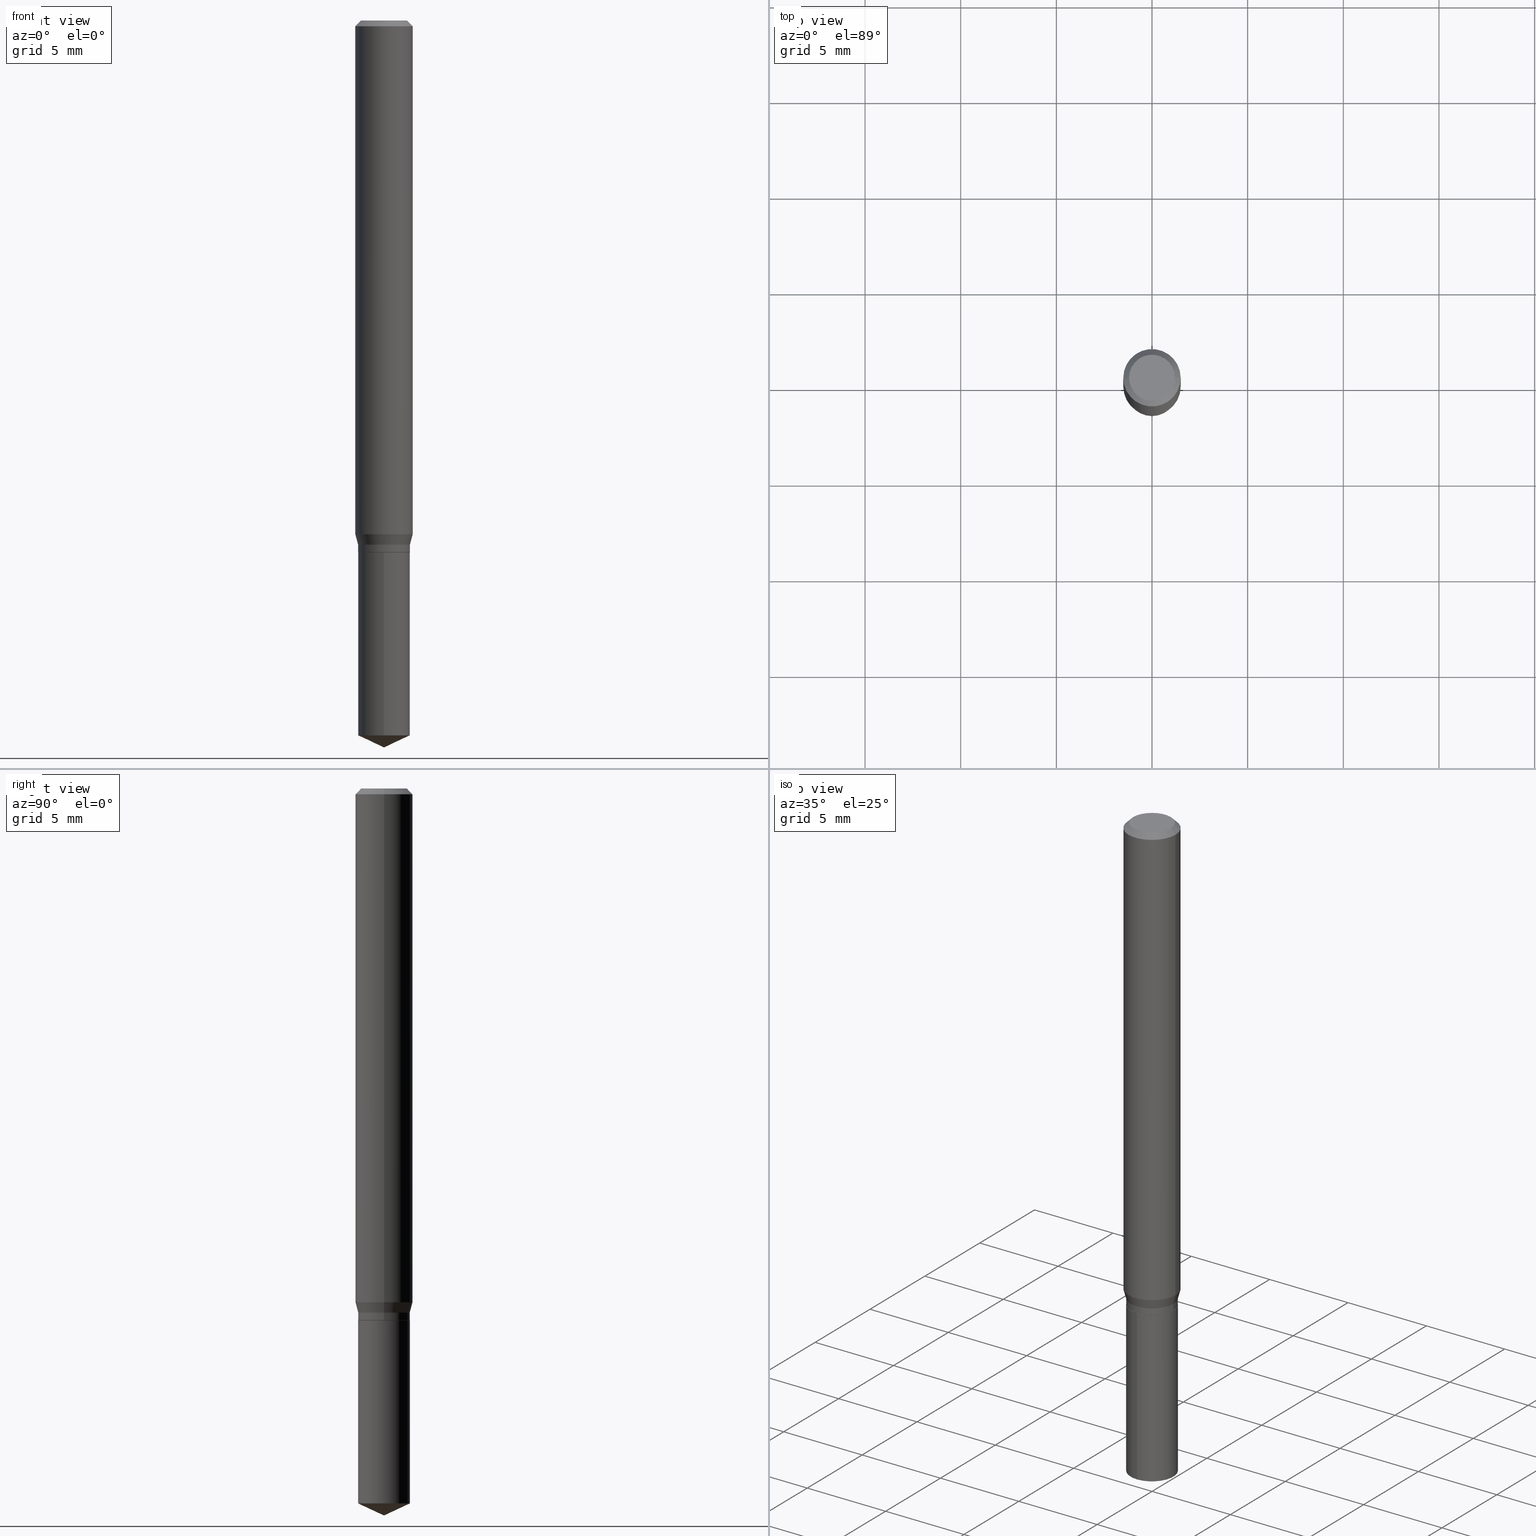
[diagram: canonical four-view strip — front | top / right | iso, engineering-drawing reading convention]
A machine part, canonical four-view strip (front | top / right | iso — engineering-drawing reading convention). The complete STEP part file that produces these views, byte-faithful:
ISO-10303-21;
HEADER;
FILE_DESCRIPTION (( 'STEP AP203' ),
    '1' );
FILE_NAME ('07686.STEP',
    '2024-04-24T01:01:56',
    ( '' ),
    ( '' ),
    'SwSTEP 2.0',
    'SolidWorks 2023',
    '' );
FILE_SCHEMA (( 'CONFIG_CONTROL_DESIGN' ));
ENDSEC;

DATA;
#1 = CARTESIAN_POINT ( 'NONE',  ( -0.05335000000000000159, -3.413547054790353271E-15, -1.078500000000000014 ) ) ;
#2 = DIRECTION ( 'NONE',  ( -6.982962677686265133E-15, -1.000000000000000000, 2.560307397998372008E-15 ) ) ;
#3 = DIRECTION ( 'NONE',  ( -2.445468806185136597E-29, 3.491481338843145583E-15, 1.000000000000000000 ) ) ;
#4 = CYLINDRICAL_SURFACE ( 'NONE', #190, 0.05335000000000000159 ) ;
#5 = VECTOR ( 'NONE', #443, 39.37007874015748143 ) ;
#6 = CIRCLE ( 'NONE', #55, 0.05335000000000000159 ) ;
#7 = LOCAL_TIME ( 21, 1, 56.00000000000000000, #207 ) ;
#8 = COORDINATED_UNIVERSAL_TIME_OFFSET ( 5, 0, .BEHIND. ) ;
#9 = CC_DESIGN_PERSON_AND_ORGANIZATION_ASSIGNMENT ( #52, #195, ( #69 ) ) ;
#10 = ORIENTED_EDGE ( 'NONE', *, *, #418, .F. ) ;
#11 = PERSON_AND_ORGANIZATION ( #422, #421 ) ;
#12 = EDGE_CURVE ( 'NONE', #167, #466, #60, .T. ) ;
#13 = VECTOR ( 'NONE', #338, 39.37007874015747433 ) ;
#14 = CONICAL_SURFACE ( 'NONE', #120, 0.05335000000000000159, 0.2617993877991500740 ) ;
#15 = VERTEX_POINT ( 'NONE', #281 ) ;
#16 = EDGE_CURVE ( 'NONE', #270, #144, #109, .T. ) ;
#17 = PERSON_AND_ORGANIZATION ( #422, #421 ) ;
#18 = ORIENTED_EDGE ( 'NONE', *, *, #204, .F. ) ;
#19 = DIRECTION ( 'NONE',  ( -2.445458899330790108E-29, 3.491495526022433599E-15, 1.000000000000000000 ) ) ;
#20 = ORIENTED_EDGE ( 'NONE', *, *, #288, .T. ) ;
#21 = ADVANCED_FACE ( 'NONE', ( #177 ), #365, .T. ) ;
#22 = ORIENTED_EDGE ( 'NONE', *, *, #116, .F. ) ;
#23 = CLOSED_SHELL ( 'NONE', ( #128, #196, #170, #285, #392 ) ) ;
#24 = AXIS2_PLACEMENT_3D ( 'NONE', #140, #476, #468 ) ;
#25 = FACE_OUTER_BOUND ( 'NONE', #276, .T. ) ;
#26 = ORIENTED_EDGE ( 'NONE', *, *, #178, .T. ) ;
#27 = FACE_OUTER_BOUND ( 'NONE', #92, .T. ) ;
#28 = EDGE_LOOP ( 'NONE', ( #277, #20, #436, #219 ) ) ;
#29 = EDGE_CURVE ( 'NONE', #51, #167, #471, .T. ) ;
#30 = LINE ( 'NONE', #67, #427 ) ;
#31 = VERTEX_POINT ( 'NONE', #173 ) ;
#32 = AXIS2_PLACEMENT_3D ( 'NONE', #361, #478, #393 ) ;
#33 = APPROVAL ( #189, 'UNSPECIFIED' ) ;
#34 = AXIS2_PLACEMENT_3D ( 'NONE', #147, #374, #305 ) ;
#35 = CYLINDRICAL_SURFACE ( 'NONE', #156, 0.05905000000000006771 ) ;
#36 = CARTESIAN_POINT ( 'NONE',  ( 0.000000000000000000, 0.000000000000000000, 0.000000000000000000 ) ) ;
#37 = EDGE_CURVE ( 'NONE', #31, #127, #244, .T. ) ;
#38 = DIRECTION ( 'NONE',  ( 2.445468806185136597E-29, -3.491481338843145583E-15, -1.000000000000000000 ) ) ;
#39 = CARTESIAN_POINT ( 'NONE',  ( -3.725410588545355495E-16, -0.05335000000000382492, -1.094499999999999806 ) ) ;
#40 = DIRECTION ( 'NONE',  ( -1.000000000000000000, 6.982962677686266711E-15, 0.000000000000000000 ) ) ;
#41 = CARTESIAN_POINT ( 'NONE',  ( 0.000000000000000000, 0.000000000000000000, 0.000000000000000000 ) ) ;
#42 = AXIS2_PLACEMENT_3D ( 'NONE', #113, #453, #151 ) ;
#43 = DIRECTION ( 'NONE',  ( -6.982962677686265133E-15, -1.000000000000000000, 2.560307397998372008E-15 ) ) ;
#44 = DIRECTION ( 'NONE',  ( 1.000000000000000000, -6.982962677686268288E-15, 0.000000000000000000 ) ) ;
#45 = EDGE_CURVE ( 'NONE', #31, #15, #405, .T. ) ;
#46 = DIRECTION ( 'NONE',  ( 0.000000000000000000, 0.000000000000000000, 1.000000000000000000 ) ) ;
#47 = PRODUCT_RELATED_PRODUCT_CATEGORY ( 'detail', '', ( #275 ) ) ;
#48 = CIRCLE ( 'NONE', #80, 0.05335000000000000159 ) ;
#49 = ORIENTED_EDGE ( 'NONE', *, *, #288, .F. ) ;
#50 = EDGE_CURVE ( 'NONE', #127, #15, #226, .T. ) ;
#51 = VERTEX_POINT ( 'NONE', #215 ) ;
#52 = PERSON_AND_ORGANIZATION ( #422, #421 ) ;
#53 = ORIENTED_EDGE ( 'NONE', *, *, #320, .F. ) ;
#54 = APPROVAL_DATE_TIME ( #383, #33 ) ;
#55 = AXIS2_PLACEMENT_3D ( 'NONE', #377, #107, #43 ) ;
#56 = EDGE_LOOP ( 'NONE', ( #401, #210, #391 ) ) ;
#57 = CARTESIAN_POINT ( 'NONE',  ( 2.676565608369631794E-29, -3.821426325363822773E-15, -1.094499999999999806 ) ) ;
#58 = EDGE_LOOP ( 'NONE', ( #310, #420, #18, #394 ) ) ;
#59 = CARTESIAN_POINT ( 'NONE',  ( 2.888098660104663766E-31, -4.123439461173779647E-17, -0.01181000000000007044 ) ) ;
#60 = LINE ( 'NONE', #171, #463 ) ;
#61 = DIRECTION ( 'NONE',  ( 1.000000000000000000, -6.982962677686267499E-15, 0.000000000000000000 ) ) ;
#62 = CARTESIAN_POINT ( 'NONE',  ( 0.000000000000000000, 0.000000000000000000, 0.000000000000000000 ) ) ;
#63 = LOCAL_TIME ( 21, 1, 56.00000000000000000, #197 ) ;
#64 = MANIFOLD_SOLID_BREP ( 'Body-Move/Copy2[2]', #437 ) ;
#65 = DIRECTION ( 'NONE',  ( -6.982962677686266711E-15, -1.000000000000000000, 3.520397390770410877E-15 ) ) ;
#66 = DIRECTION ( 'NONE',  ( 6.439704144417044553E-15, 0.9063077870366541555, 0.4226182617406904485 ) ) ;
#67 = CARTESIAN_POINT ( 'NONE',  ( -0.05285000000000000114, -3.445904489514609768E-15, -1.094500000000000028 ) ) ;
#68 = DIRECTION ( 'NONE',  ( -2.445458899330790108E-29, 3.491495526022433205E-15, 1.000000000000000000 ) ) ;
#69 = PRODUCT_DEFINITION ( 'UNKNOWN', '', #376, #208 ) ;
#70 = DIRECTION ( 'NONE',  ( -2.445468806185136597E-29, 3.491481338843145583E-15, 1.000000000000000000 ) ) ;
#71 = CARTESIAN_POINT ( 'NONE',  ( 3.658672935554494692E-29, -5.223595400746700193E-15, -1.496099999999999985 ) ) ;
#72 = AXIS2_PLACEMENT_3D ( 'NONE', #136, #243, #65 ) ;
#73 = AXIS2_PLACEMENT_3D ( 'NONE', #283, #432, #390 ) ;
#74 = EDGE_CURVE ( 'NONE', #270, #146, #329, .T. ) ;
#75 = FACE_OUTER_BOUND ( 'NONE', #58, .T. ) ;
#76 = CARTESIAN_POINT ( 'NONE',  ( 2.888098660104663766E-31, -4.123439461173779647E-17, -0.01181000000000007044 ) ) ;
#77 = CC_DESIGN_DATE_AND_TIME_ASSIGNMENT ( #123, #267, ( #69 ) ) ;
#78 = LINE ( 'NONE', #181, #336 ) ;
#79 = DIRECTION ( 'NONE',  ( -2.445468806185136597E-29, 3.491481338843145583E-15, 1.000000000000000000 ) ) ;
#80 = AXIS2_PLACEMENT_3D ( 'NONE', #228, #115, #444 ) ;
#81 = CARTESIAN_POINT ( 'NONE',  ( 8.265746106709734507E-48, -1.180129479067563789E-33, -3.380025165646692144E-19 ) ) ;
#82 = EDGE_CURVE ( 'NONE', #88, #466, #168, .T. ) ;
#83 = PERSON_AND_ORGANIZATION ( #422, #421 ) ;
#84 = ORIENTED_EDGE ( 'NONE', *, *, #82, .T. ) ;
#85 = APPROVAL_ROLE ( '' ) ;
#86 = ORIENTED_EDGE ( 'NONE', *, *, #273, .F. ) ;
#87 = APPROVAL ( #164, 'UNSPECIFIED' ) ;
#88 = VERTEX_POINT ( 'NONE', #303 ) ;
#89 = CALENDAR_DATE ( 2024, 23, 4 ) ;
#90 = ORIENTED_EDGE ( 'NONE', *, *, #108, .T. ) ;
#91 = SHAPE_DEFINITION_REPRESENTATION ( #153, #106 ) ;
#92 = EDGE_LOOP ( 'NONE', ( #424, #324 ) ) ;
#93 = CC_DESIGN_APPROVAL ( #237, ( #227 ) ) ;
#94 = ADVANCED_FACE ( 'NONE', ( #114 ), #263, .T. ) ;
#95 = DIRECTION ( 'NONE',  ( 1.000000000000000000, -6.982962677686266711E-15, 0.000000000000000000 ) ) ;
#96 = CARTESIAN_POINT ( 'NONE',  ( 3.658651059288795076E-29, -5.223626456482161457E-15, -1.496099999999999985 ) ) ;
#97 = ORIENTED_EDGE ( 'NONE', *, *, #482, .F. ) ;
#98 = ADVANCED_FACE ( 'NONE', ( #340 ), #266, .T. ) ;
#99 = DIRECTION ( 'NONE',  ( -2.445468806185136597E-29, 3.491481338843145583E-15, 1.000000000000000000 ) ) ;
#100 = EDGE_LOOP ( 'NONE', ( #84, #479, #238, #22 ) ) ;
#101 = LOCAL_TIME ( 21, 1, 56.00000000000000000, #465 ) ;
#102 = CARTESIAN_POINT ( 'NONE',  ( 0.05905000000000013016, -4.103633371283330921E-15, -1.057227310396857023 ) ) ;
#103 = DIRECTION ( 'NONE',  ( -2.445468806185136597E-29, 3.491481338843145583E-15, 1.000000000000000000 ) ) ;
#104 = FACE_OUTER_BOUND ( 'NONE', #464, .T. ) ;
#105 = CARTESIAN_POINT ( 'NONE',  ( 2.637438107470669995E-29, -3.765562623942332293E-15, -1.078500000000000014 ) ) ;
#106 = ADVANCED_BREP_SHAPE_REPRESENTATION ( '07686', ( #379, #64, #233 ), #110 ) ;
#107 = DIRECTION ( 'NONE',  ( -2.445458899330790108E-29, 3.491495526022433205E-15, 1.000000000000000000 ) ) ;
#108 = EDGE_CURVE ( 'NONE', #127, #345, #185, .T. ) ;
#109 = CIRCLE ( 'NONE', #380, 0.05905000000000013016 ) ;
#110 =( GEOMETRIC_REPRESENTATION_CONTEXT ( 3 ) GLOBAL_UNCERTAINTY_ASSIGNED_CONTEXT ( ( #445 ) ) GLOBAL_UNIT_ASSIGNED_CONTEXT ( ( #346, #349, #129 ) ) REPRESENTATION_CONTEXT ( 'NONE', 'WORKASPACE' ) );
#111 = CARTESIAN_POINT ( 'NONE',  ( 3.790745495280493536E-16, 0.05334999999999616438, -1.094500000000000028 ) ) ;
#112 = DIRECTION ( 'NONE',  ( 1.000000000000000000, -6.982962677686268288E-15, 0.000000000000000000 ) ) ;
#113 = CARTESIAN_POINT ( 'NONE',  ( 2.888098660104663766E-31, -4.123439461173779647E-17, -0.01181000000000007044 ) ) ;
#114 = FACE_OUTER_BOUND ( 'NONE', #284, .T. ) ;
#115 = DIRECTION ( 'NONE',  ( -2.445468806185136597E-29, 3.491481338843145583E-15, 1.000000000000000000 ) ) ;
#116 = EDGE_CURVE ( 'NONE', #88, #270, #122, .T. ) ;
#117 = CARTESIAN_POINT ( 'NONE',  ( -0.05285000000000000114, -3.443255262340498567E-15, -1.094500000000000028 ) ) ;
#118 = AXIS2_PLACEMENT_3D ( 'NONE', #62, #213, #255 ) ;
#119 = APPLICATION_CONTEXT ( 'configuration controlled 3d designs of mechanical parts and assemblies' ) ;
#120 = AXIS2_PLACEMENT_3D ( 'NONE', #218, #79, #152 ) ;
#121 = MECHANICAL_CONTEXT ( 'NONE', #119, 'mechanical' ) ;
#122 = LINE ( 'NONE', #331, #13 ) ;
#123 = DATE_AND_TIME ( #89, #101 ) ;
#124 = ORIENTED_EDGE ( 'NONE', *, *, #125, .T. ) ;
#125 = EDGE_CURVE ( 'NONE', #167, #51, #161, .T. ) ;
#126 = LENGTH_MEASURE_WITH_UNIT ( LENGTH_MEASURE( 0.02539999999999999897 ), #157 );
#127 = VERTEX_POINT ( 'NONE', #260 ) ;
#128 = ADVANCED_FACE ( 'NONE', ( #415 ), #4, .T. ) ;
#129 =( NAMED_UNIT ( * ) SI_UNIT ( $, .STERADIAN. ) SOLID_ANGLE_UNIT ( ) );
#130 = CIRCLE ( 'NONE', #368, 0.04724000000000000421 ) ;
#131 = EDGE_LOOP ( 'NONE', ( #292, #457 ) ) ;
#132 = APPROVAL_ROLE ( '' ) ;
#133 = ORIENTED_EDGE ( 'NONE', *, *, #359, .F. ) ;
#134 = APPROVAL_ROLE ( '' ) ;
#135 = EDGE_LOOP ( 'NONE', ( #49, #235, #90, #133 ) ) ;
#136 = CARTESIAN_POINT ( 'NONE',  ( -9.261924752013118283E-28, 1.322368428517963298E-13, 37.87397874015748300 ) ) ;
#137 = AXIS2_PLACEMENT_3D ( 'NONE', #299, #450, #454 ) ;
#138 = AXIS2_PLACEMENT_3D ( 'NONE', #184, #448, #337 ) ;
#139 = VERTEX_POINT ( 'NONE', #117 ) ;
#140 = CARTESIAN_POINT ( 'NONE',  ( -9.261924752013118283E-28, 1.322368428517963298E-13, 37.87397874015748300 ) ) ;
#141 = ORIENTED_EDGE ( 'NONE', *, *, #344, .T. ) ;
#142 = CARTESIAN_POINT ( 'NONE',  ( 3.597824965406070746E-29, -5.136751201312159950E-15, -1.471222486437431254 ) ) ;
#143 = EDGE_CURVE ( 'NONE', #384, #51, #487, .T. ) ;
#144 = VERTEX_POINT ( 'NONE', #317 ) ;
#145 = DIRECTION ( 'NONE',  ( -2.445468806185136877E-29, 3.491481338843145188E-15, 1.000000000000000000 ) ) ;
#146 = VERTEX_POINT ( 'NONE', #246 ) ;
#147 = CARTESIAN_POINT ( 'NONE',  ( 2.676565608369631794E-29, -3.821426325363822773E-15, -1.094499999999999806 ) ) ;
#148 = DIRECTION ( 'NONE',  ( -2.445468806185136597E-29, 3.491481338843145583E-15, 1.000000000000000000 ) ) ;
#149 = VECTOR ( 'NONE', #224, 39.37007874015748143 ) ;
#150 = CARTESIAN_POINT ( 'NONE',  ( 8.265746106709734507E-48, -1.180129479067563789E-33, -3.380025165646692144E-19 ) ) ;
#151 = DIRECTION ( 'NONE',  ( 1.000000000000000000, -6.982962677686266711E-15, 0.000000000000000000 ) ) ;
#152 = DIRECTION ( 'NONE',  ( 1.000000000000000000, -6.982962677686268288E-15, 0.000000000000000000 ) ) ;
#153 = PRODUCT_DEFINITION_SHAPE ( 'NONE', 'NONE',  #69 ) ;
#154 = CARTESIAN_POINT ( 'NONE',  ( -3.725410588545355495E-16, -0.05335000000000382492, -1.094499999999999806 ) ) ;
#155 = VECTOR ( 'NONE', #66, 39.37007874015748143 ) ;
#156 = AXIS2_PLACEMENT_3D ( 'NONE', #41, #179, #332 ) ;
#157 =( LENGTH_UNIT ( ) NAMED_UNIT ( * ) SI_UNIT ( $, .METRE. ) );
#158 = CALENDAR_DATE ( 2024, 23, 4 ) ;
#159 = VERTEX_POINT ( 'NONE', #327 ) ;
#160 = PERSON_AND_ORGANIZATION_ROLE ( 'design_owner' ) ;
#161 = CIRCLE ( 'NONE', #231, 0.05335000000000000159 ) ;
#162 = APPROVAL_PERSON_ORGANIZATION ( #341, #87, #132 ) ;
#163 = ORIENTED_EDGE ( 'NONE', *, *, #186, .T. ) ;
#164 = APPROVAL_STATUS ( 'not_yet_approved' ) ;
#165 = EDGE_LOOP ( 'NONE', ( #484, #474, #356, #348 ) ) ;
#166 = DIRECTION ( 'NONE',  ( -2.445468806185136597E-29, 3.491481338843145583E-15, 1.000000000000000000 ) ) ;
#167 = VERTEX_POINT ( 'NONE', #435 ) ;
#168 = CIRCLE ( 'NONE', #278, 0.05335000000000000159 ) ;
#169 = AXIS2_PLACEMENT_3D ( 'NONE', #330, #410, #254 ) ;
#170 = ADVANCED_FACE ( 'NONE', ( #25 ), #480, .T. ) ;
#171 = CARTESIAN_POINT ( 'NONE',  ( -0.05335000000000000159, 3.790745495280134604E-16, -2.624251870650992415E-30 ) ) ;
#172 = LINE ( 'NONE', #355, #375 ) ;
#173 = CARTESIAN_POINT ( 'NONE',  ( 3.658651059288794515E-29, -5.223626456482161457E-15, -1.496099999999999985 ) ) ;
#174 = EDGE_CURVE ( 'NONE', #230, #318, #172, .T. ) ;
#175 = PLANE ( 'NONE',  #32 ) ;
#176 = ORIENTED_EDGE ( 'NONE', *, *, #174, .T. ) ;
#177 = FACE_OUTER_BOUND ( 'NONE', #165, .T. ) ;
#178 = EDGE_CURVE ( 'NONE', #139, #167, #30, .T. ) ;
#179 = DIRECTION ( 'NONE',  ( -2.445468806185136597E-29, 3.491481338843145583E-15, 1.000000000000000000 ) ) ;
#180 = FACE_OUTER_BOUND ( 'NONE', #328, .T. ) ;
#181 = CARTESIAN_POINT ( 'NONE',  ( 0.05335000000000000159, -3.725410588545623708E-16, 2.601440309887131706E-30 ) ) ;
#182 = EDGE_CURVE ( 'NONE', #15, #127, #289, .T. ) ;
#183 = AXIS2_PLACEMENT_3D ( 'NONE', #36, #70, #367 ) ;
#184 = CARTESIAN_POINT ( 'NONE',  ( 2.676565608369632355E-29, -3.821426325363822773E-15, -1.094500000000000028 ) ) ;
#185 = LINE ( 'NONE', #154, #149 ) ;
#186 = EDGE_CURVE ( 'NONE', #144, #270, #199, .T. ) ;
#187 = CARTESIAN_POINT ( 'NONE',  ( 7.012475686570645720E-30, -6.650194186352977832E-15, -1.094500000000000028 ) ) ;
#188 = CARTESIAN_POINT ( 'NONE',  ( 2.676565608369631794E-29, -3.821426325363822773E-15, -1.094499999999999806 ) ) ;
#189 = APPROVAL_STATUS ( 'not_yet_approved' ) ;
#190 = AXIS2_PLACEMENT_3D ( 'NONE', #188, #408, #2 ) ;
#191 = VECTOR ( 'NONE', #145, 39.37007874015748143 ) ;
#192 = PERSON_AND_ORGANIZATION ( #422, #421 ) ;
#193 = ADVANCED_FACE ( 'NONE', ( #27 ), #175, .F. ) ;
#194 = ORIENTED_EDGE ( 'NONE', *, *, #418, .T. ) ;
#195 = PERSON_AND_ORGANIZATION_ROLE ( 'creator' ) ;
#196 = ADVANCED_FACE ( 'NONE', ( #325 ), #342, .T. ) ;
#197 = COORDINATED_UNIVERSAL_TIME_OFFSET ( 5, 0, .BEHIND. ) ;
#198 = ORIENTED_EDGE ( 'NONE', *, *, #178, .F. ) ;
#199 = CIRCLE ( 'NONE', #271, 0.05905000000000013016 ) ;
#200 = COORDINATED_UNIVERSAL_TIME_OFFSET ( 5, 0, .BEHIND. ) ;
#201 = CC_DESIGN_APPROVAL ( #33, ( #69 ) ) ;
#202 = CC_DESIGN_SECURITY_CLASSIFICATION ( #227, ( #376 ) ) ;
#203 = EDGE_LOOP ( 'NONE', ( #268, #459 ) ) ;
#204 = EDGE_CURVE ( 'NONE', #146, #318, #366, .T. ) ;
#205 = CARTESIAN_POINT ( 'NONE',  ( -0.05905000000000006771, 4.195754854663396409E-16, -2.904631170795525045E-30 ) ) ;
#206 = ORIENTED_EDGE ( 'NONE', *, *, #344, .F. ) ;
#207 = COORDINATED_UNIVERSAL_TIME_OFFSET ( 5, 0, .BEHIND. ) ;
#208 = DESIGN_CONTEXT ( 'detailed design', #462, 'design' ) ;
#209 = DIRECTION ( 'NONE',  ( 2.445468806185136597E-29, -3.491481338843145583E-15, -1.000000000000000000 ) ) ;
#210 = ORIENTED_EDGE ( 'NONE', *, *, #45, .T. ) ;
#211 = CARTESIAN_POINT ( 'NONE',  ( 2.888098660104663766E-31, -4.123439461173779647E-17, -0.01181000000000007044 ) ) ;
#212 = APPROVAL_PERSON_ORGANIZATION ( #17, #33, #85 ) ;
#213 = DIRECTION ( 'NONE',  ( -2.445468806185136597E-29, 3.491481338843145583E-15, 1.000000000000000000 ) ) ;
#214 = DIRECTION ( 'NONE',  ( -2.445458899330790108E-29, 3.491495526022433205E-15, 1.000000000000000000 ) ) ;
#215 = CARTESIAN_POINT ( 'NONE',  ( 0.05335000000000000159, -4.192221643548963542E-15, -1.093999999999999861 ) ) ;
#216 = CARTESIAN_POINT ( 'NONE',  ( 2.585416408622524463E-29, -3.691289425165956001E-15, -1.057227310396857023 ) ) ;
#217 = ORIENTED_EDGE ( 'NONE', *, *, #116, .T. ) ;
#218 = CARTESIAN_POINT ( 'NONE',  ( 2.637438107470669995E-29, -3.765562623942332293E-15, -1.078500000000000014 ) ) ;
#219 = ORIENTED_EDGE ( 'NONE', *, *, #108, .F. ) ;
#220 = AXIS2_PLACEMENT_3D ( 'NONE', #59, #209, #256 ) ;
#221 = DIRECTION ( 'NONE',  ( 1.000000000000000000, -6.982962677686266711E-15, 4.876185090822587894E-29 ) ) ;
#222 = FACE_OUTER_BOUND ( 'NONE', #308, .T. ) ;
#223 = EDGE_CURVE ( 'NONE', #345, #470, #428, .T. ) ;
#224 = DIRECTION ( 'NONE',  ( -2.445458899330790108E-29, 3.491495526022433599E-15, 1.000000000000000000 ) ) ;
#225 = PLANE ( 'NONE',  #34 ) ;
#226 = CIRCLE ( 'NONE', #412, 0.05335000000000000159 ) ;
#227 = SECURITY_CLASSIFICATION ( '', '', #229 ) ;
#228 = CARTESIAN_POINT ( 'NONE',  ( 2.637438107470669995E-29, -3.765562623942332293E-15, -1.078500000000000014 ) ) ;
#229 = SECURITY_CLASSIFICATION_LEVEL ( 'unclassified' ) ;
#230 = VERTEX_POINT ( 'NONE', #395 ) ;
#231 = AXIS2_PLACEMENT_3D ( 'NONE', #446, #335, #112 ) ;
#232 = CC_DESIGN_DATE_AND_TIME_ASSIGNMENT ( #269, #419, ( #227 ) ) ;
#233 = AXIS2_PLACEMENT_3D ( 'NONE', #456, #46, #387 ) ;
#234 = PERSON_AND_ORGANIZATION ( #422, #421 ) ;
#235 = ORIENTED_EDGE ( 'NONE', *, *, #182, .T. ) ;
#236 = ORIENTED_EDGE ( 'NONE', *, *, #296, .T. ) ;
#237 = APPROVAL ( #279, 'UNSPECIFIED' ) ;
#238 = ORIENTED_EDGE ( 'NONE', *, *, #16, .F. ) ;
#239 = CALENDAR_DATE ( 2024, 23, 4 ) ;
#240 = CIRCLE ( 'NONE', #407, 0.04724000000000000421 ) ;
#241 = FACE_OUTER_BOUND ( 'NONE', #135, .T. ) ;
#242 = EDGE_LOOP ( 'NONE', ( #198, #354, #274, #362 ) ) ;
#243 = DIRECTION ( 'NONE',  ( -2.445458899330790108E-29, 3.491495526022433205E-15, 1.000000000000000000 ) ) ;
#244 = LINE ( 'NONE', #96, #257 ) ;
#245 = APPROVAL_DATE_TIME ( #425, #237 ) ;
#246 = CARTESIAN_POINT ( 'NONE',  ( 0.05904999999999999832, -4.535783407291118600E-16, -0.01181000000000007044 ) ) ;
#247 = ORIENTED_EDGE ( 'NONE', *, *, #182, .F. ) ;
#248 = LINE ( 'NONE', #319, #490 ) ;
#249 = CONICAL_SURFACE ( 'NONE', #272, 0.05285000000000000114, 0.7853981633972775267 ) ;
#250 = CIRCLE ( 'NONE', #42, 0.05904999999999999832 ) ;
#251 = CARTESIAN_POINT ( 'NONE',  ( 2.585416408622524463E-29, -3.691289425165956001E-15, -1.057227310396857023 ) ) ;
#252 = CARTESIAN_POINT ( 'NONE',  ( 2.676565608369632355E-29, -3.821426325363822773E-15, -1.094500000000000028 ) ) ;
#253 = EDGE_LOOP ( 'NONE', ( #440, #124, #352, #206 ) ) ;
#254 = DIRECTION ( 'NONE',  ( 1.000000000000000000, -6.982962677686268288E-15, 0.000000000000000000 ) ) ;
#255 = DIRECTION ( 'NONE',  ( 1.000000000000000000, -6.982962677686267499E-15, 4.876176775795935793E-29 ) ) ;
#256 = DIRECTION ( 'NONE',  ( -1.000000000000000000, 6.982962677686266711E-15, 0.000000000000000000 ) ) ;
#257 = VECTOR ( 'NONE', #477, 39.37007874015748143 ) ;
#258 = CONICAL_SURFACE ( 'NONE', #169, 0.05335000000000000159, 0.2617993877991500740 ) ;
#259 = FACE_OUTER_BOUND ( 'NONE', #242, .T. ) ;
#260 = CARTESIAN_POINT ( 'NONE',  ( -3.725410588545263790E-16, -0.05335000000000515025, -1.471222486437430810 ) ) ;
#261 = FACE_OUTER_BOUND ( 'NONE', #203, .T. ) ;
#262 = DIRECTION ( 'NONE',  ( 1.000000000000000000, -6.982962677686267499E-15, 0.000000000000000000 ) ) ;
#263 = CONICAL_SURFACE ( 'NONE', #447, 0.05904999999999999832, 0.7853981633974452814 ) ;
#264 = VECTOR ( 'NONE', #19, 39.37007874015748143 ) ;
#265 = PERSON_AND_ORGANIZATION ( #422, #421 ) ;
#266 = CYLINDRICAL_SURFACE ( 'NONE', #137, 0.05335000000000000159 ) ;
#267 = DATE_TIME_ROLE ( 'creation_date' ) ;
#268 = ORIENTED_EDGE ( 'NONE', *, *, #223, .T. ) ;
#269 = DATE_AND_TIME ( #158, #398 ) ;
#270 = VERTEX_POINT ( 'NONE', #102 ) ;
#271 = AXIS2_PLACEMENT_3D ( 'NONE', #216, #99, #473 ) ;
#272 = AXIS2_PLACEMENT_3D ( 'NONE', #373, #304, #262 ) ;
#273 = EDGE_CURVE ( 'NONE', #144, #318, #280, .T. ) ;
#274 = ORIENTED_EDGE ( 'NONE', *, *, #143, .T. ) ;
#275 = PRODUCT ( '07686', '07686', '', ( #121 ) ) ;
#276 = EDGE_LOOP ( 'NONE', ( #316, #381, #247 ) ) ;
#277 = ORIENTED_EDGE ( 'NONE', *, *, #50, .T. ) ;
#278 = AXIS2_PLACEMENT_3D ( 'NONE', #105, #372, #44 ) ;
#279 = APPROVAL_STATUS ( 'not_yet_approved' ) ;
#280 = LINE ( 'NONE', #205, #191 ) ;
#281 = CARTESIAN_POINT ( 'NONE',  ( 3.790745495280494029E-16, 0.05334999999999485987, -1.471222486437431476 ) ) ;
#282 = EDGE_CURVE ( 'NONE', #466, #144, #248, .T. ) ;
#283 = CARTESIAN_POINT ( 'NONE',  ( 2.676565608369631794E-29, -3.821426325363822773E-15, -1.094499999999999806 ) ) ;
#284 = EDGE_LOOP ( 'NONE', ( #388, #194, #423, #426 ) ) ;
#285 = ADVANCED_FACE ( 'NONE', ( #241 ), #439, .T. ) ;
#286 = CARTESIAN_POINT ( 'NONE',  ( 3.597824965406070746E-29, -5.136751201312159950E-15, -1.471222486437431254 ) ) ;
#287 = DIRECTION ( 'NONE',  ( -6.982962677686265133E-15, -1.000000000000000000, 5.120614795996744016E-15 ) ) ;
#288 = EDGE_CURVE ( 'NONE', #15, #470, #353, .T. ) ;
#289 = CIRCLE ( 'NONE', #357, 0.05335000000000000159 ) ;
#290 = DIRECTION ( 'NONE',  ( -0.7071067811865453523, 2.468850131082234184E-15, -0.7071067811865496822 ) ) ;
#291 = AXIS2_PLACEMENT_3D ( 'NONE', #187, #489, #339 ) ;
#292 = ORIENTED_EDGE ( 'NONE', *, *, #296, .F. ) ;
#293 = DIRECTION ( 'NONE',  ( -2.445458899330790108E-29, 3.491495526022433205E-15, 1.000000000000000000 ) ) ;
#294 = CARTESIAN_POINT ( 'NONE',  ( 0.05905000000000006771, -4.123439461173745257E-16, 2.879382386107503723E-30 ) ) ;
#295 = LINE ( 'NONE', #409, #382 ) ;
#296 = EDGE_CURVE ( 'NONE', #384, #139, #300, .T. ) ;
#297 = FACE_OUTER_BOUND ( 'NONE', #131, .T. ) ;
#298 = VECTOR ( 'NONE', #306, 39.37007874015748143 ) ;
#299 = CARTESIAN_POINT ( 'NONE',  ( 0.000000000000000000, 0.000000000000000000, 0.000000000000000000 ) ) ;
#300 = CIRCLE ( 'NONE', #455, 0.05285000000000000114 ) ;
#301 = DIMENSIONAL_EXPONENTS ( 1.000000000000000000, 0.000000000000000000, 0.000000000000000000, 0.000000000000000000, 0.000000000000000000, 0.000000000000000000, 0.000000000000000000 ) ;
#302 = CARTESIAN_POINT ( 'NONE',  ( 0.05285000000000000114, -4.190475902879542038E-15, -1.094500000000000028 ) ) ;
#303 = CARTESIAN_POINT ( 'NONE',  ( 0.05335000000000000159, -4.138103682796894565E-15, -1.078500000000000014 ) ) ;
#304 = DIRECTION ( 'NONE',  ( -2.445468806185136597E-29, 3.491481338843145583E-15, 1.000000000000000000 ) ) ;
#305 = DIRECTION ( 'NONE',  ( 6.982962677686265922E-15, 1.000000000000000000, -3.491495526022433599E-15 ) ) ;
#306 = DIRECTION ( 'NONE',  ( 0.7071067811864267805, -2.468850131080992517E-15, 0.7071067811866682540 ) ) ;
#307 = AXIS2_PLACEMENT_3D ( 'NONE', #57, #214, #364 ) ;
#308 = EDGE_LOOP ( 'NONE', ( #236, #26, #369, #417 ) ) ;
#309 = APPLICATION_PROTOCOL_DEFINITION ( 'international standard', 'config_control_design', 1994, #119 ) ;
#310 = ORIENTED_EDGE ( 'NONE', *, *, #16, .T. ) ;
#311 = ADVANCED_FACE ( 'NONE', ( #402 ), #472, .T. ) ;
#312 = CALENDAR_DATE ( 2024, 23, 4 ) ;
#313 = AXIS2_PLACEMENT_3D ( 'NONE', #360, #103, #403 ) ;
#314 = CIRCLE ( 'NONE', #322, 0.05285000000000000114 ) ;
#315 = APPLICATION_PROTOCOL_DEFINITION ( 'international standard', 'config_control_design', 1994, #462 ) ;
#316 = ORIENTED_EDGE ( 'NONE', *, *, #45, .F. ) ;
#317 = CARTESIAN_POINT ( 'NONE',  ( -0.05905000000000013016, -3.271713939699615719E-15, -1.057227310396857023 ) ) ;
#318 = VERTEX_POINT ( 'NONE', #371 ) ;
#319 = CARTESIAN_POINT ( 'NONE',  ( -0.05335000000000000159, -3.386488074414319177E-15, -1.078500000000000014 ) ) ;
#320 = EDGE_CURVE ( 'NONE', #318, #146, #250, .T. ) ;
#321 = DIRECTION ( 'NONE',  ( 1.000000000000000000, -6.982962677686265133E-15, 0.000000000000000000 ) ) ;
#322 = AXIS2_PLACEMENT_3D ( 'NONE', #411, #148, #485 ) ;
#323 = DIRECTION ( 'NONE',  ( -0.7071067811864267805, 7.493145998869918709E-15, 0.7071067811866682540 ) ) ;
#324 = ORIENTED_EDGE ( 'NONE', *, *, #370, .T. ) ;
#325 = FACE_OUTER_BOUND ( 'NONE', #56, .T. ) ;
#326 = DIRECTION ( 'NONE',  ( -2.445468806185136877E-29, 3.491481338843145188E-15, 1.000000000000000000 ) ) ;
#327 = CARTESIAN_POINT ( 'NONE',  ( 0.04724000000000000421, -3.852183633974369345E-16, -3.380025165621689721E-19 ) ) ;
#328 = EDGE_LOOP ( 'NONE', ( #86, #163, #433, #53 ) ) ;
#329 = LINE ( 'NONE', #294, #5 ) ;
#330 = CARTESIAN_POINT ( 'NONE',  ( 2.637438107470669995E-29, -3.765562623942332293E-15, -1.078500000000000014 ) ) ;
#331 = CARTESIAN_POINT ( 'NONE',  ( 0.05335000000000000159, -4.138103682796894565E-15, -1.078500000000000014 ) ) ;
#332 = DIRECTION ( 'NONE',  ( 1.000000000000000000, -6.982962677686266711E-15, 4.876176775795936353E-29 ) ) ;
#333 = CC_DESIGN_PERSON_AND_ORGANIZATION_ASSIGNMENT ( #11, #160, ( #275 ) ) ;
#334 = DIRECTION ( 'NONE',  ( 0.7071067811865453523, -7.319954787623248157E-15, -0.7071067811865496822 ) ) ;
#335 = DIRECTION ( 'NONE',  ( -2.445468806185136597E-29, 3.491481338843145583E-15, 1.000000000000000000 ) ) ;
#336 = VECTOR ( 'NONE', #488, 39.37007874015748143 ) ;
#337 = DIRECTION ( 'NONE',  ( 1.000000000000000000, -6.982962677686267499E-15, 0.000000000000000000 ) ) ;
#338 = DIRECTION ( 'NONE',  ( 0.2588190451025213501, 1.565188264969621968E-15, 0.9659258262890682012 ) ) ;
#339 = DIRECTION ( 'NONE',  ( 1.000000000000000000, -6.982962677686265922E-15, 4.876176775795935793E-29 ) ) ;
#340 = FACE_OUTER_BOUND ( 'NONE', #253, .T. ) ;
#341 = PERSON_AND_ORGANIZATION ( #422, #421 ) ;
#342 = CONICAL_SURFACE ( 'NONE', #24, 84.42940631927537254, 1.134464013796320669 ) ;
#343 = PERSON_AND_ORGANIZATION_ROLE ( 'classification_officer' ) ;
#344 = EDGE_CURVE ( 'NONE', #466, #88, #48, .T. ) ;
#345 = VERTEX_POINT ( 'NONE', #39 ) ;
#346 =( CONVERSION_BASED_UNIT ( 'INCH', #126 ) LENGTH_UNIT ( ) NAMED_UNIT ( #301 ) );
#347 = CC_DESIGN_PERSON_AND_ORGANIZATION_ASSIGNMENT ( #192, #343, ( #227 ) ) ;
#348 = ORIENTED_EDGE ( 'NONE', *, *, #400, .F. ) ;
#349 =( NAMED_UNIT ( * ) PLANE_ANGLE_UNIT ( ) SI_UNIT ( $, .RADIAN. ) );
#350 = EDGE_LOOP ( 'NONE', ( #10, #97, #176, #386 ) ) ;
#351 = APPROVAL_DATE_TIME ( #416, #87 ) ;
#352 = ORIENTED_EDGE ( 'NONE', *, *, #400, .T. ) ;
#353 = LINE ( 'NONE', #429, #264 ) ;
#354 = ORIENTED_EDGE ( 'NONE', *, *, #469, .T. ) ;
#355 = CARTESIAN_POINT ( 'NONE',  ( -0.05904999999999999832, 3.711095515056362547E-16, -0.01181000000000007044 ) ) ;
#356 = ORIENTED_EDGE ( 'NONE', *, *, #82, .F. ) ;
#357 = AXIS2_PLACEMENT_3D ( 'NONE', #286, #293, #441 ) ;
#358 = APPROVAL_PERSON_ORGANIZATION ( #234, #237, #134 ) ;
#359 = EDGE_CURVE ( 'NONE', #470, #345, #6, .T. ) ;
#360 = CARTESIAN_POINT ( 'NONE',  ( 2.675342873966538993E-29, -3.819680584694400481E-15, -1.093999999999999861 ) ) ;
#361 = CARTESIAN_POINT ( 'NONE',  ( 4.132873053354867254E-48, -5.900647395337818946E-34, -1.690012582823346072E-19 ) ) ;
#362 = ORIENTED_EDGE ( 'NONE', *, *, #125, .F. ) ;
#363 = ADVANCED_FACE ( 'NONE', ( #297 ), #406, .F. ) ;
#364 = DIRECTION ( 'NONE',  ( -6.982962677686265133E-15, -1.000000000000000000, 2.560307397998372008E-15 ) ) ;
#365 = CYLINDRICAL_SURFACE ( 'NONE', #118, 0.05335000000000000159 ) ;
#366 = CIRCLE ( 'NONE', #397, 0.05904999999999999832 ) ;
#367 = DIRECTION ( 'NONE',  ( 1.000000000000000000, -6.982962677686266711E-15, 4.876176775795936353E-29 ) ) ;
#368 = AXIS2_PLACEMENT_3D ( 'NONE', #150, #3, #221 ) ;
#369 = ORIENTED_EDGE ( 'NONE', *, *, #29, .F. ) ;
#370 = EDGE_CURVE ( 'NONE', #159, #230, #130, .T. ) ;
#371 = CARTESIAN_POINT ( 'NONE',  ( -0.05904999999999999832, -1.446686424422506583E-15, -0.01181000000000007044 ) ) ;
#372 = DIRECTION ( 'NONE',  ( -2.445468806185136597E-29, 3.491481338843145583E-15, 1.000000000000000000 ) ) ;
#373 = CARTESIAN_POINT ( 'NONE',  ( 2.676565608369632355E-29, -3.821426325363822773E-15, -1.094500000000000028 ) ) ;
#374 = DIRECTION ( 'NONE',  ( 2.445458899330789267E-29, -3.491495526022433599E-15, -1.000000000000000000 ) ) ;
#375 = VECTOR ( 'NONE', #290, 39.37007874015748143 ) ;
#376 = PRODUCT_DEFINITION_FORMATION_WITH_SPECIFIED_SOURCE ( 'ANY', '', #275, .NOT_KNOWN. ) ;
#377 = CARTESIAN_POINT ( 'NONE',  ( 2.676565608369631794E-29, -3.821426325363822773E-15, -1.094499999999999806 ) ) ;
#378 = PERSON_AND_ORGANIZATION_ROLE ( 'design_supplier' ) ;
#379 = MANIFOLD_SOLID_BREP ( 'Body-Move/Copy2[1]', #23 ) ;
#380 = AXIS2_PLACEMENT_3D ( 'NONE', #251, #430, #321 ) ;
#381 = ORIENTED_EDGE ( 'NONE', *, *, #37, .T. ) ;
#382 = VECTOR ( 'NONE', #334, 39.37007874015748143 ) ;
#383 = DATE_AND_TIME ( #385, #63 ) ;
#384 = VERTEX_POINT ( 'NONE', #302 ) ;
#385 = CALENDAR_DATE ( 2024, 23, 4 ) ;
#386 = ORIENTED_EDGE ( 'NONE', *, *, #320, .T. ) ;
#387 = DIRECTION ( 'NONE',  ( 1.000000000000000000, 0.000000000000000000, 0.000000000000000000 ) ) ;
#388 = ORIENTED_EDGE ( 'NONE', *, *, #370, .F. ) ;
#389 = ADVANCED_FACE ( 'NONE', ( #452 ), #14, .T. ) ;
#390 = DIRECTION ( 'NONE',  ( -6.982962677686265133E-15, -1.000000000000000000, 2.560307397998372008E-15 ) ) ;
#391 = ORIENTED_EDGE ( 'NONE', *, *, #50, .F. ) ;
#392 = ADVANCED_FACE ( 'NONE', ( #261 ), #225, .F. ) ;
#393 = DIRECTION ( 'NONE',  ( -1.000000000000000000, 6.982962677686265922E-15, -4.876176775795935793E-29 ) ) ;
#394 = ORIENTED_EDGE ( 'NONE', *, *, #74, .F. ) ;
#395 = CARTESIAN_POINT ( 'NONE',  ( -0.04724000000000000421, 3.504923541997677355E-16, -3.380025165670481712E-19 ) ) ;
#396 = ORIENTED_EDGE ( 'NONE', *, *, #186, .F. ) ;
#397 = AXIS2_PLACEMENT_3D ( 'NONE', #211, #483, #95 ) ;
#398 = LOCAL_TIME ( 21, 1, 56.00000000000000000, #8 ) ;
#399 = DIRECTION ( 'NONE',  ( -0.2588190451025213501, 5.211531920934551042E-15, 0.9659258262890682012 ) ) ;
#400 = EDGE_CURVE ( 'NONE', #51, #88, #78, .T. ) ;
#401 = ORIENTED_EDGE ( 'NONE', *, *, #37, .F. ) ;
#402 = FACE_OUTER_BOUND ( 'NONE', #350, .T. ) ;
#403 = DIRECTION ( 'NONE',  ( 1.000000000000000000, -6.982962677686268288E-15, 0.000000000000000000 ) ) ;
#404 = CYLINDRICAL_SURFACE ( 'NONE', #183, 0.05905000000000006771 ) ;
#405 = LINE ( 'NONE', #71, #155 ) ;
#406 = PLANE ( 'NONE',  #291 ) ;
#407 = AXIS2_PLACEMENT_3D ( 'NONE', #81, #458, #414 ) ;
#408 = DIRECTION ( 'NONE',  ( -2.445458899330790108E-29, 3.491495526022433205E-15, 1.000000000000000000 ) ) ;
#409 = CARTESIAN_POINT ( 'NONE',  ( 0.05904999999999999832, -4.463468013801466955E-16, -0.01181000000000007044 ) ) ;
#410 = DIRECTION ( 'NONE',  ( -2.445468806185136597E-29, 3.491481338843145583E-15, 1.000000000000000000 ) ) ;
#411 = CARTESIAN_POINT ( 'NONE',  ( 2.676565608369632355E-29, -3.821426325363822773E-15, -1.094500000000000028 ) ) ;
#412 = AXIS2_PLACEMENT_3D ( 'NONE', #142, #68, #287 ) ;
#413 = CARTESIAN_POINT ( 'NONE',  ( 0.05285000000000000114, -4.190475902879542038E-15, -1.094500000000000028 ) ) ;
#414 = DIRECTION ( 'NONE',  ( 1.000000000000000000, -6.982962677686266711E-15, 4.876185090822587894E-29 ) ) ;
#415 = FACE_OUTER_BOUND ( 'NONE', #28, .T. ) ;
#416 = DATE_AND_TIME ( #312, #438 ) ;
#417 = ORIENTED_EDGE ( 'NONE', *, *, #143, .F. ) ;
#418 = EDGE_CURVE ( 'NONE', #159, #146, #295, .T. ) ;
#419 = DATE_TIME_ROLE ( 'classification_date' ) ;
#420 = ORIENTED_EDGE ( 'NONE', *, *, #273, .T. ) ;
#421 = ORGANIZATION ( 'UNSPECIFIED', 'UNSPECIFIED', '' ) ;
#422 = PERSON ( 'UNSPECIFIED', 'UNSPECIFIED', 'UNSPECIFIED', ('UNSPECIFIED'), ('UNSPECIFIED'), ('UNSPECIFIED') ) ;
#423 = ORIENTED_EDGE ( 'NONE', *, *, #204, .T. ) ;
#424 = ORIENTED_EDGE ( 'NONE', *, *, #482, .T. ) ;
#425 = DATE_AND_TIME ( #239, #7 ) ;
#426 = ORIENTED_EDGE ( 'NONE', *, *, #174, .F. ) ;
#427 = VECTOR ( 'NONE', #323, 39.37007874015748143 ) ;
#428 = CIRCLE ( 'NONE', #73, 0.05335000000000000159 ) ;
#429 = CARTESIAN_POINT ( 'NONE',  ( 3.790745495280401338E-16, 0.05334999999999617826, -1.094500000000000028 ) ) ;
#430 = DIRECTION ( 'NONE',  ( -2.445468806185136597E-29, 3.491481338843145583E-15, 1.000000000000000000 ) ) ;
#431 = ADVANCED_FACE ( 'NONE', ( #104 ), #258, .T. ) ;
#432 = DIRECTION ( 'NONE',  ( -2.445458899330790108E-29, 3.491495526022433205E-15, 1.000000000000000000 ) ) ;
#433 = ORIENTED_EDGE ( 'NONE', *, *, #74, .T. ) ;
#434 = ADVANCED_FACE ( 'NONE', ( #75 ), #404, .T. ) ;
#435 = CARTESIAN_POINT ( 'NONE',  ( -0.05335000000000000159, -3.413547054790353271E-15, -1.093999999999999861 ) ) ;
#436 = ORIENTED_EDGE ( 'NONE', *, *, #223, .F. ) ;
#437 = CLOSED_SHELL ( 'NONE', ( #451, #94, #434, #389, #21, #98, #431, #442, #311, #193, #363, #475 ) ) ;
#438 = LOCAL_TIME ( 21, 1, 56.00000000000000000, #200 ) ;
#439 = CYLINDRICAL_SURFACE ( 'NONE', #307, 0.05335000000000000159 ) ;
#440 = ORIENTED_EDGE ( 'NONE', *, *, #12, .F. ) ;
#441 = DIRECTION ( 'NONE',  ( -6.982962677686265133E-15, -1.000000000000000000, 5.120614795996744016E-15 ) ) ;
#442 = ADVANCED_FACE ( 'NONE', ( #180 ), #35, .T. ) ;
#443 = DIRECTION ( 'NONE',  ( -2.445468806185136877E-29, 3.491481338843145188E-15, 1.000000000000000000 ) ) ;
#444 = DIRECTION ( 'NONE',  ( 1.000000000000000000, -6.982962677686268288E-15, 0.000000000000000000 ) ) ;
#445 = UNCERTAINTY_MEASURE_WITH_UNIT (LENGTH_MEASURE( 1.000000000000000082E-05 ), #346, 'distance_accuracy_value', 'NONE');
#446 = CARTESIAN_POINT ( 'NONE',  ( 2.675342873966538993E-29, -3.819680584694400481E-15, -1.093999999999999861 ) ) ;
#447 = AXIS2_PLACEMENT_3D ( 'NONE', #76, #38, #40 ) ;
#448 = DIRECTION ( 'NONE',  ( -2.445468806185136597E-29, 3.491481338843145583E-15, 1.000000000000000000 ) ) ;
#449 = CONICAL_SURFACE ( 'NONE', #138, 0.05285000000000000114, 0.7853981633972775267 ) ;
#450 = DIRECTION ( 'NONE',  ( -2.445468806185136597E-29, 3.491481338843145583E-15, 1.000000000000000000 ) ) ;
#451 = ADVANCED_FACE ( 'NONE', ( #222 ), #449, .T. ) ;
#452 = FACE_OUTER_BOUND ( 'NONE', #100, .T. ) ;
#453 = DIRECTION ( 'NONE',  ( -2.445468806185136597E-29, 3.491481338843145583E-15, 1.000000000000000000 ) ) ;
#454 = DIRECTION ( 'NONE',  ( 1.000000000000000000, -6.982962677686267499E-15, 4.876176775795935793E-29 ) ) ;
#455 = AXIS2_PLACEMENT_3D ( 'NONE', #252, #166, #61 ) ;
#456 = CARTESIAN_POINT ( 'NONE',  ( 0.000000000000000000, 0.000000000000000000, 0.000000000000000000 ) ) ;
#457 = ORIENTED_EDGE ( 'NONE', *, *, #469, .F. ) ;
#458 = DIRECTION ( 'NONE',  ( -2.445468806185136597E-29, 3.491481338843145583E-15, 1.000000000000000000 ) ) ;
#459 = ORIENTED_EDGE ( 'NONE', *, *, #359, .T. ) ;
#460 = CC_DESIGN_PERSON_AND_ORGANIZATION_ASSIGNMENT ( #265, #461, ( #376 ) ) ;
#461 = PERSON_AND_ORGANIZATION_ROLE ( 'creator' ) ;
#462 = APPLICATION_CONTEXT ( 'configuration controlled 3d designs of mechanical parts and assemblies' ) ;
#463 = VECTOR ( 'NONE', #326, 39.37007874015748143 ) ;
#464 = EDGE_LOOP ( 'NONE', ( #467, #141, #217, #396 ) ) ;
#465 = COORDINATED_UNIVERSAL_TIME_OFFSET ( 5, 0, .BEHIND. ) ;
#466 = VERTEX_POINT ( 'NONE', #1 ) ;
#467 = ORIENTED_EDGE ( 'NONE', *, *, #282, .F. ) ;
#468 = DIRECTION ( 'NONE',  ( -6.982962677686266711E-15, -1.000000000000000000, 3.520397390770410877E-15 ) ) ;
#469 = EDGE_CURVE ( 'NONE', #139, #384, #314, .T. ) ;
#470 = VERTEX_POINT ( 'NONE', #111 ) ;
#471 = CIRCLE ( 'NONE', #313, 0.05335000000000000159 ) ;
#472 = CONICAL_SURFACE ( 'NONE', #220, 0.05904999999999999832, 0.7853981633974452814 ) ;
#473 = DIRECTION ( 'NONE',  ( 1.000000000000000000, -6.982962677686265133E-15, 0.000000000000000000 ) ) ;
#474 = ORIENTED_EDGE ( 'NONE', *, *, #12, .T. ) ;
#475 = ADVANCED_FACE ( 'NONE', ( #259 ), #249, .T. ) ;
#476 = DIRECTION ( 'NONE',  ( -2.445458899330790108E-29, 3.491495526022433205E-15, 1.000000000000000000 ) ) ;
#477 = DIRECTION ( 'NONE',  ( -6.328713451373389100E-15, -0.9063077870366512689, 0.4226182617406967768 ) ) ;
#478 = DIRECTION ( 'NONE',  ( 2.438088387897960049E-29, -3.491481338843145188E-15, -1.000000000000000000 ) ) ;
#479 = ORIENTED_EDGE ( 'NONE', *, *, #282, .T. ) ;
#480 = CONICAL_SURFACE ( 'NONE', #72, 84.42940631927537254, 1.134464013796320669 ) ;
#481 = CC_DESIGN_APPROVAL ( #87, ( #376 ) ) ;
#482 = EDGE_CURVE ( 'NONE', #230, #159, #240, .T. ) ;
#483 = DIRECTION ( 'NONE',  ( -2.445468806185136597E-29, 3.491481338843145583E-15, 1.000000000000000000 ) ) ;
#484 = ORIENTED_EDGE ( 'NONE', *, *, #29, .T. ) ;
#485 = DIRECTION ( 'NONE',  ( 1.000000000000000000, -6.982962677686267499E-15, 0.000000000000000000 ) ) ;
#486 = CC_DESIGN_PERSON_AND_ORGANIZATION_ASSIGNMENT ( #83, #378, ( #376 ) ) ;
#487 = LINE ( 'NONE', #413, #298 ) ;
#488 = DIRECTION ( 'NONE',  ( -2.445468806185136877E-29, 3.491481338843145188E-15, 1.000000000000000000 ) ) ;
#489 = DIRECTION ( 'NONE',  ( -2.438088387897960049E-29, 3.491481338843145188E-15, 1.000000000000000000 ) ) ;
#490 = VECTOR ( 'NONE', #399, 39.37007874015747433 ) ;
ENDSEC;
END-ISO-10303-21;
